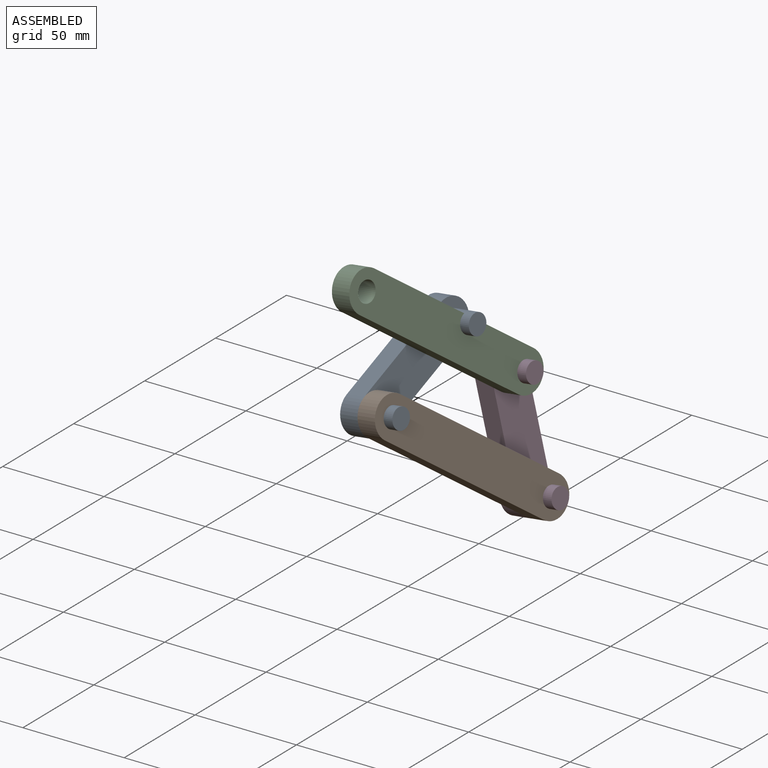
[diagram: assembled view]
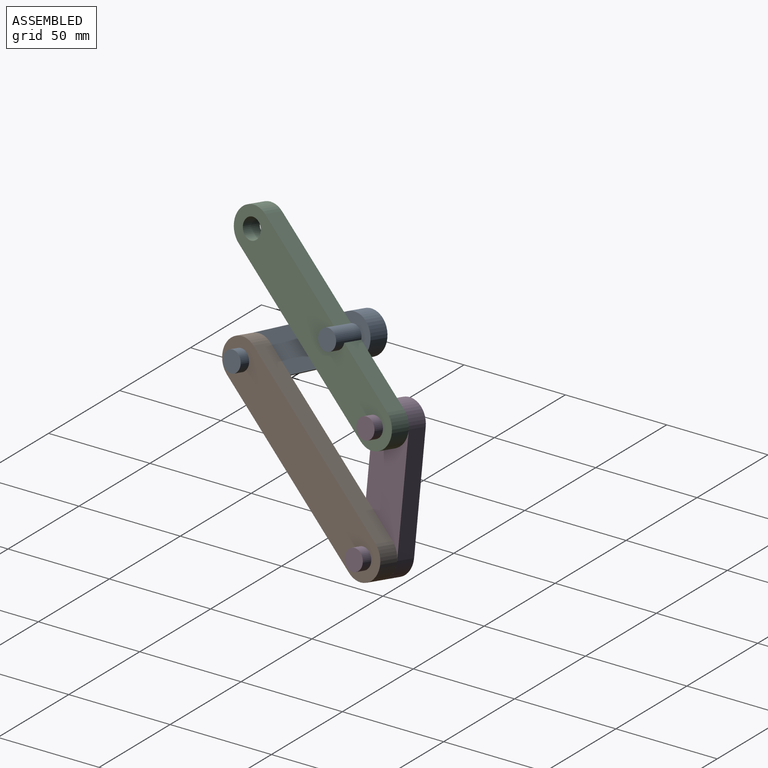
[diagram: assembled view, second angle]
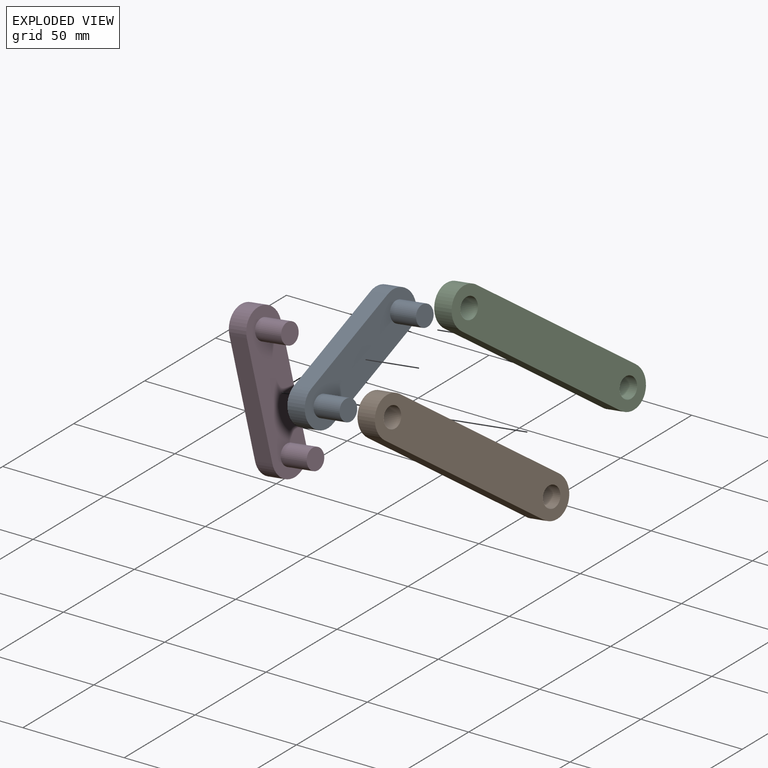
[diagram: exploded view]
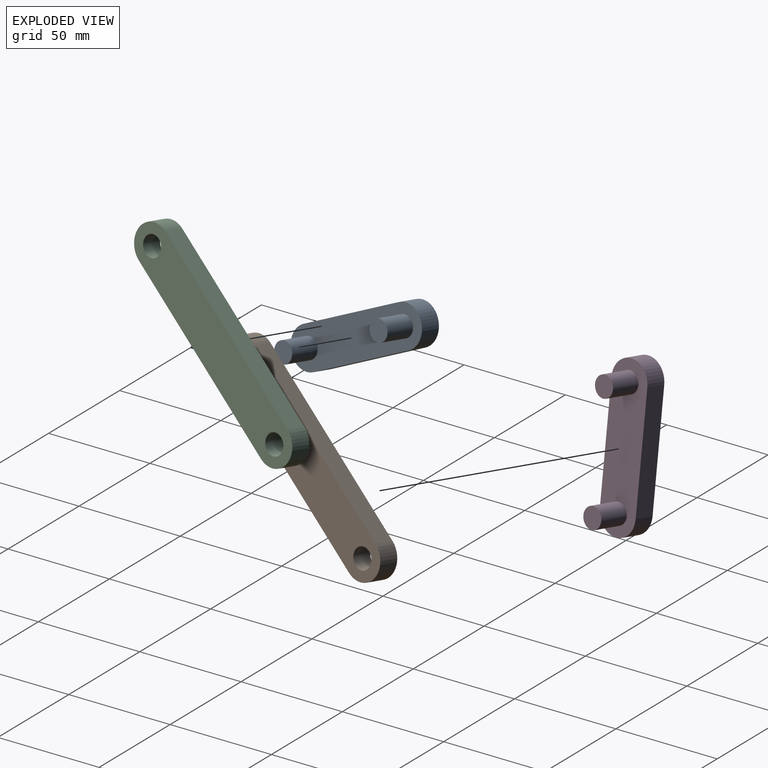
[diagram: exploded view, second angle]
ASSEMBLY  parts=4 mates=3
PART A: 10 faces, bbox 20x75x25 mm
  f0: plane 55x10mm, normal (1,0,0), area 550mm2, adj f1,f3,f4,f5
  f1: cylinder r=10mm len=20mm, axis (0,0,-1), area 314.2mm2, adj f0,f2,f4,f5
  f2: plane 55x10mm, normal (-1,0,0), area 550mm2, adj f1,f3,f4,f5
  f3: cylinder r=10mm len=20mm, axis (0,0,-1), area 314.2mm2, adj f0,f2,f4,f5
  f4: plane 75x20mm, normal (0,0,1), area 1414.2mm2, adj f0,f1,f2,f3
  f5: plane 75x20mm, normal (0,0,-1), area 1257.1mm2, adj f0,f1,f2,f3,f6,f8
  f6: cylinder r=5mm len=15mm, axis (0,0,1), area 471.2mm2, adj f5,f7
  f7: plane 10x10mm, normal (0,0,-1), area 78.5mm2, adj f6
  f8: cylinder r=5mm len=15mm, axis (0,0,1), area 471.2mm2, adj f5,f9
  f9: plane 10x10mm, normal (0,0,-1), area 78.5mm2, adj f8
PART B: 8 faces, bbox 120x20x10 mm
  f0: cylinder r=10mm len=20mm, axis (0,0,-1), area 314.2mm2, adj f1,f5,f6,f7
  f1: plane 100x10mm, normal (0,-1,0), area 1000mm2, adj f0,f2,f6,f7
  f2: cylinder r=10mm len=20mm, axis (0,0,-1), area 314.2mm2, adj f1,f5,f6,f7
  f3: cylinder r=5mm len=10mm, axis (0,0,-1), area 314.2mm2, adj f6,f7
  f4: cylinder r=5mm len=10mm, axis (0,0,-1), area 314.2mm2, adj f6,f7
  f5: plane 100x10mm, normal (0,1,0), area 1000mm2, adj f0,f2,f6,f7
  f6: plane 120x20mm, normal (0,0,1), area 2157.1mm2, adj f0,f1,f2,f3,f4,f5
  f7: plane 120x20mm, normal (0,0,-1), area 2157.1mm2, adj f0,f1,f2,f3,f4,f5
PART C: same geometry as B
PART D: same geometry as A
PLACE A rot(axis=(0.15,-0.96,-0.24),105.7deg) t=(184.45,112.04,-154.18)mm
PLACE B rot(axis=(0.35,-0.85,-0.39),114.4deg) t=(180.09,63.87,-171.58)mm
PLACE C rot(axis=(0.35,-0.85,-0.39),114.4deg) t=(168.92,61.8,-117.77)mm
PLACE D rot(axis=(-0.66,-0.6,0.45),120.3deg) t=(202.77,115.97,-242)mm
MATE revolute C.f0 <-> D.f3  axis (-0.97,0.16,-0.19) through (181.51,126.03,-179.59)mm
MATE revolute B.f2 <-> A.f3  axis (-0.97,0.16,-0.19) through (168.3,50.74,-174.92)mm
MATE revolute D.f1 <-> B.f0  axis (-0.97,0.16,-0.19) through (192.69,128.1,-233.41)mm
